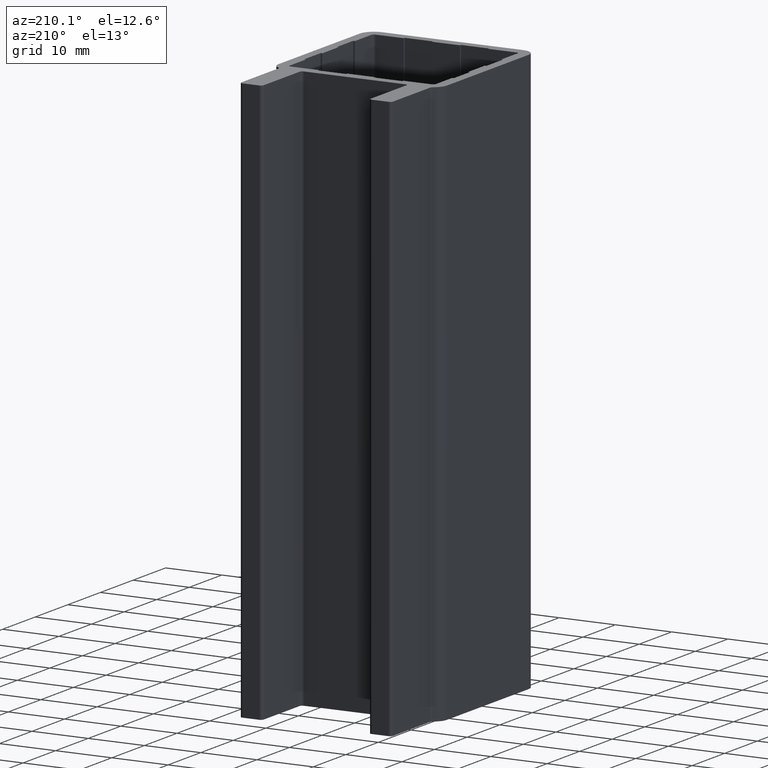
[diagram: clean part render]
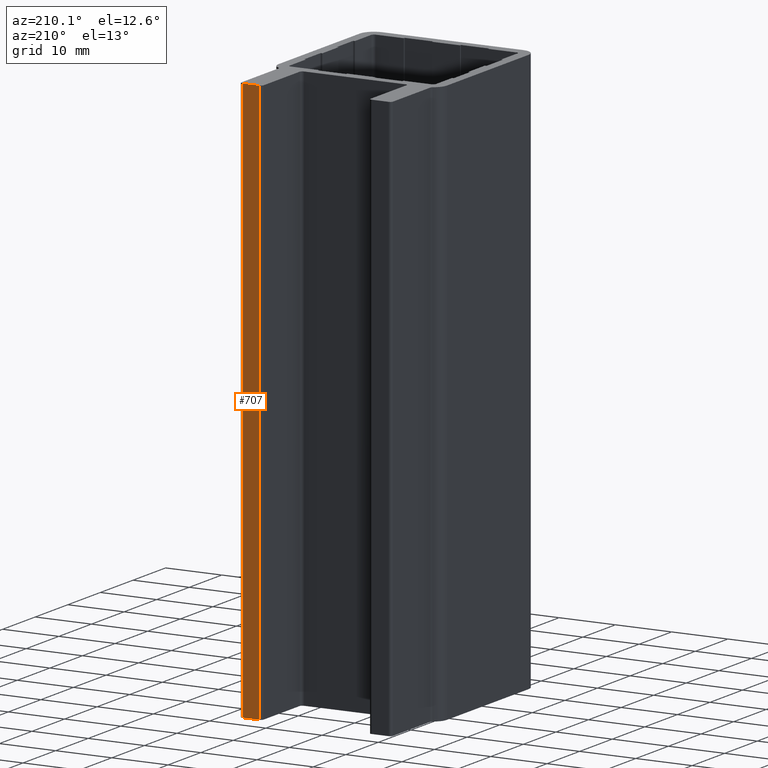
[diagram: same view with one face highlighted and labeled with its STEP entity id]
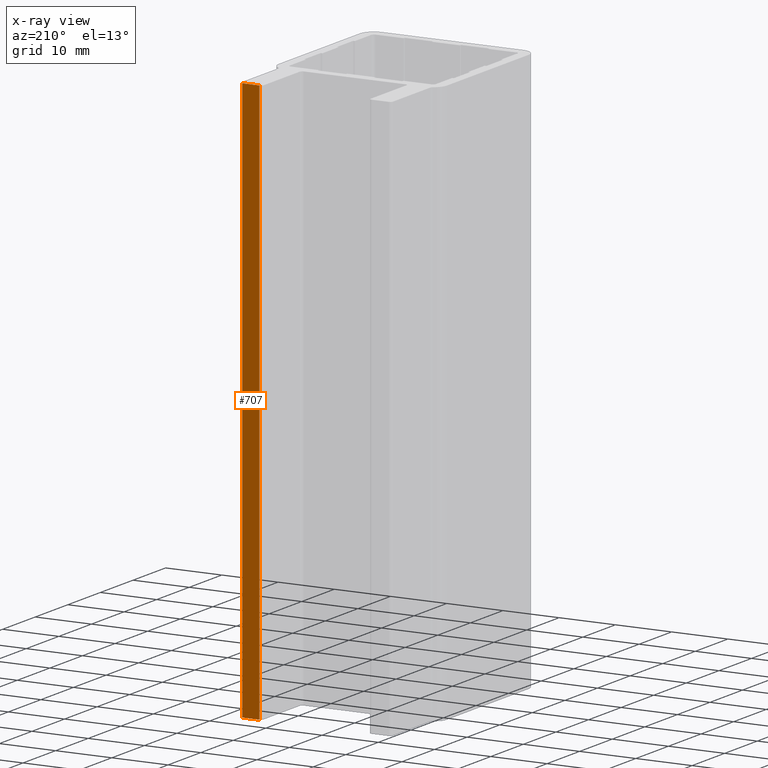
[diagram: x-ray of the same camera — body ghosted, the highlighted face saturated]
A machine part, auxiliary view. The second image highlights one B-rep face of the part: STEP entity #707.
The next image is the same camera in x-ray: the body ghosted, the highlighted face saturated — about 0% of this face is hidden behind the body in this view.
In plain terms, the highlighted planar face has unit normal (0, -1, 0).
Its self-contained STEP definition (entity closure, byte-faithful):
#7=CARTESIAN_POINT('',(10.000000000005571,42.000000000124601,100.0));
#8=VERTEX_POINT('',#7);
#9=CARTESIAN_POINT('',(10.000000000005571,42.000000000124601,0.0));
#10=VERTEX_POINT('',#9);
#11=CARTESIAN_POINT('',(10.000000000005571,42.000000000124601,100.0));
#12=DIRECTION('',(0.0,0.0,-1.0));
#13=VECTOR('',#12,100.0);
#14=LINE('',#11,#13);
#15=EDGE_CURVE('',#8,#10,#14,.T.);
#659=CARTESIAN_POINT('',(13.000000000005684,42.000000000124601,0.0));
#660=VERTEX_POINT('',#659);
#668=CARTESIAN_POINT('',(13.000000000005684,42.000000000124601,100.0));
#669=VERTEX_POINT('',#668);
#670=CARTESIAN_POINT('',(13.000000000005684,42.000000000124601,100.0));
#671=DIRECTION('',(0.0,0.0,-1.0));
#672=VECTOR('',#671,100.0);
#673=LINE('',#670,#672);
#674=EDGE_CURVE('',#669,#660,#673,.T.);
#686=CARTESIAN_POINT('',(13.000000000005684,42.000000000124601,100.0));
#687=DIRECTION('',(0.0,-1.0,0.0));
#688=DIRECTION('',(-1.0,0.0,0.0));
#689=AXIS2_PLACEMENT_3D('',#686,#687,#688);
#690=PLANE('',#689);
#691=ORIENTED_EDGE('',*,*,#674,.T.);
#692=CARTESIAN_POINT('',(13.000000000005684,42.000000000124601,0.0));
#693=DIRECTION('',(-1.0,0.0,0.0));
#694=VECTOR('',#693,3.000000000000114);
#695=LINE('',#692,#694);
#696=EDGE_CURVE('',#660,#10,#695,.T.);
#697=ORIENTED_EDGE('',*,*,#696,.T.);
#698=ORIENTED_EDGE('',*,*,#15,.F.);
#699=CARTESIAN_POINT('',(13.000000000005684,42.000000000124601,100.0));
#700=DIRECTION('',(-1.0,0.0,0.0));
#701=VECTOR('',#700,3.000000000000114);
#702=LINE('',#699,#701);
#703=EDGE_CURVE('',#669,#8,#702,.T.);
#704=ORIENTED_EDGE('',*,*,#703,.F.);
#705=EDGE_LOOP('',(#691,#697,#698,#704));
#706=FACE_OUTER_BOUND('',#705,.T.);
#707=ADVANCED_FACE('',(#706),#690,.F.);